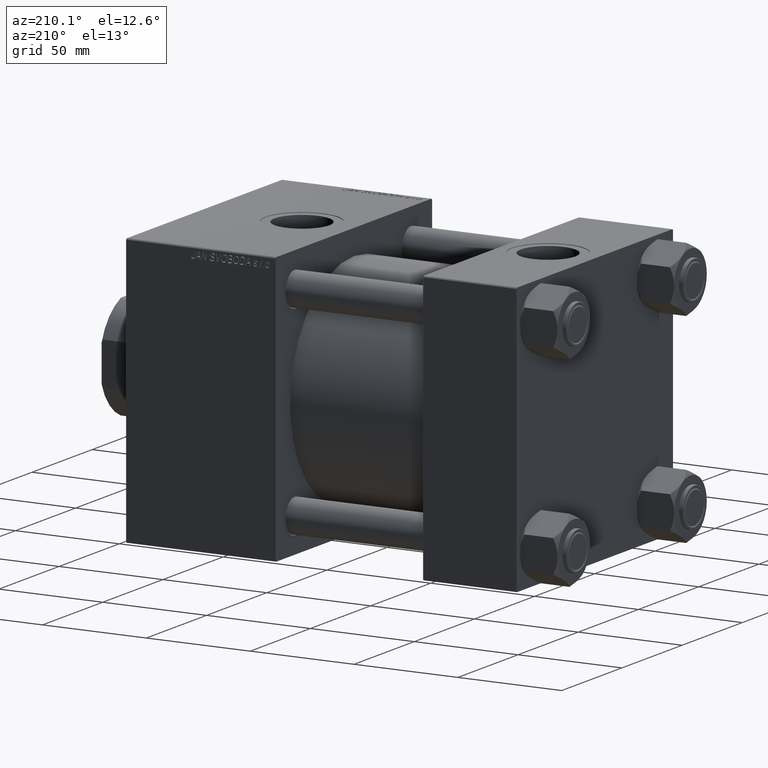
[diagram: clean part render]
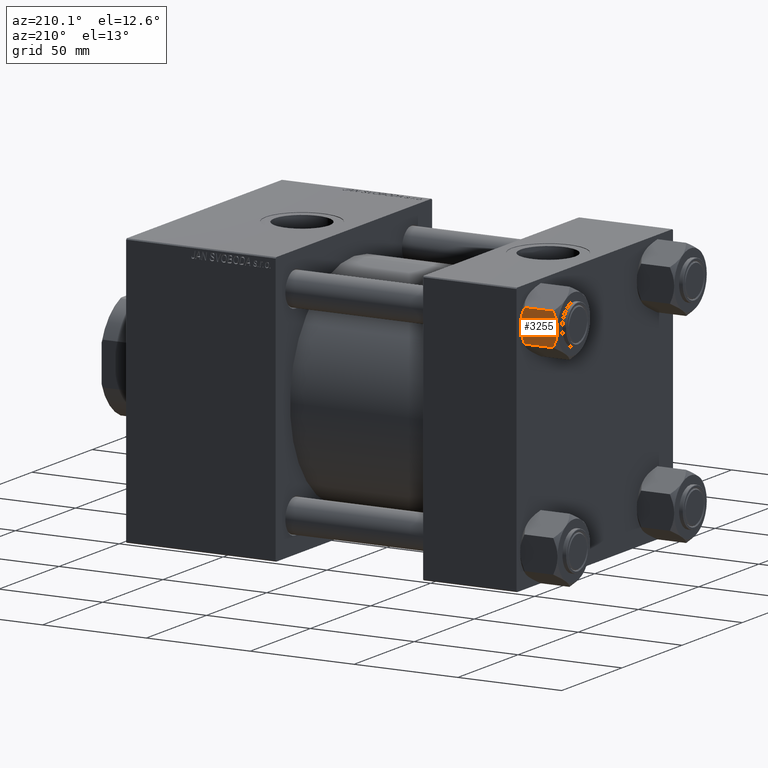
[diagram: same view with one face highlighted and labeled with its STEP entity id]
A machine part, auxiliary view. The second image highlights one B-rep face of the part: STEP entity #3255.
In plain terms, the highlighted planar face has unit normal (0, -1, 0).
Its self-contained STEP definition (entity closure, byte-faithful):
#275 = CARTESIAN_POINT ( 'NONE',  ( 0.3330234424833806162, 13.52731680711293905, -17.99999999999998579 ) ) ;
#593 = DIRECTION ( 'NONE',  ( 1.000000000000000000, 1.110578409716265846E-16, 0.000000000000000000 ) ) ;
#1275 = CARTESIAN_POINT ( 'NONE',  ( 0.6693083573771171357, 13.52731680711294082, -17.98750666918890673 ) ) ;
#1527 = LINE ( 'NONE', #28736, #25315 ) ;
#2164 = VERTEX_POINT ( 'NONE', #39122 ) ;
#3255 = ADVANCED_FACE ( 'NONE', ( #4310 ), #34576, .F. ) ;
#3800 = CARTESIAN_POINT ( 'NONE',  ( 7.622943475354644782, 13.52731680711293727, -2.000000000000000000 ) ) ;
#4310 = FACE_OUTER_BOUND ( 'NONE', #17946, .T. ) ;
#4626 = CARTESIAN_POINT ( 'NONE',  ( 1.333889873825127248, 13.52731680711293549, -17.93843358996559090 ) ) ;
#4635 = CARTESIAN_POINT ( 'NONE',  ( 7.622943475354622578, 13.52731680711293727, -16.00000000000000000 ) ) ;
#4938 = VERTEX_POINT ( 'NONE', #29792 ) ;
#5103 = CARTESIAN_POINT ( 'NONE',  ( -7.809999999999996945, 13.52731680711293727, -16.00000000000000000 ) ) ;
#5151 = VERTEX_POINT ( 'NONE', #4635 ) ;
#5479 = CARTESIAN_POINT ( 'NONE',  ( -7.030888348548044675, 13.52731680711294082, -16.29066211644970252 ) ) ;
#5972 = CARTESIAN_POINT ( 'NONE',  ( -6.427364677720452946, 13.52731680711293905, -16.56149306284485334 ) ) ;
#7260 = EDGE_CURVE ( 'NONE', #16471, #18568, #25800, .T. ) ;
#7432 = ORIENTED_EDGE ( 'NONE', *, *, #17527, .F. ) ;
#8677 = ORIENTED_EDGE ( 'NONE', *, *, #38602, .F. ) ;
#8712 = CARTESIAN_POINT ( 'NONE',  ( 5.184073258379385152, 13.52731680711294260, -17.05185620934991064 ) ) ;
#9073 = VERTEX_POINT ( 'NONE', #41779 ) ;
#9275 = CARTESIAN_POINT ( 'NONE',  ( -7.622943475354626131, 13.52731680711293727, -16.00000000000000000 ) ) ;
#9617 = ORIENTED_EDGE ( 'NONE', *, *, #33558, .F. ) ;
#9938 = CARTESIAN_POINT ( 'NONE',  ( -1.502314598737160017E-15, 13.52731680711293727, 0.000000000000000000 ) ) ;
#11773 = ORIENTED_EDGE ( 'NONE', *, *, #50526, .F. ) ;
#12460 = B_SPLINE_CURVE_WITH_KNOTS ( 'NONE', 3,
 ( #9938, #41245, #37387, #43271, #23253, #34803, #30694, #27121, #50202, #23757, #30947, #42768 ),
 .UNSPECIFIED., .F., .F.,
 ( 4, 2, 2, 2, 2, 4 ),
 ( 0.02774433486126545723, 0.02873404020403549572, 0.02972374554680553421, 0.03170315623234561120, 0.03368256691788568125, 0.03566197760342575823 ),
 .UNSPECIFIED. ) ;
#12580 = CARTESIAN_POINT ( 'NONE',  ( 7.622943475354622578, 13.52731680711293727, -16.00000000000000000 ) ) ;
#13304 = LINE ( 'NONE', #5103, #42018 ) ;
#13898 = CARTESIAN_POINT ( 'NONE',  ( 7.810000000000001386, 13.52731680711293905, -18.00000000000000000 ) ) ;
#14277 = EDGE_CURVE ( 'NONE', #44326, #2164, #46296, .T. ) ;
#15368 = DIRECTION ( 'NONE',  ( -1.000000000000000000, -1.110578409716265846E-16, 0.000000000000000000 ) ) ;
#15601 = CARTESIAN_POINT ( 'NONE',  ( 1.335584685993415732, 13.52731680711294260, -9.825582188149885905E-16 ) ) ;
#15638 = EDGE_CURVE ( 'NONE', #4938, #16471, #47811, .T. ) ;
#16471 = VERTEX_POINT ( 'NONE', #9275 ) ;
#17527 = EDGE_CURVE ( 'NONE', #18568, #5151, #40630, .T. ) ;
#17946 = EDGE_LOOP ( 'NONE', ( #22212, #25663, #9617, #11773, #49178, #26894, #8677, #27614, #7432, #39208 ) ) ;
#18034 = CARTESIAN_POINT ( 'NONE',  ( -4.553769687922292420, 13.52731680711293905, -17.26727080048547691 ) ) ;
#18151 = VECTOR ( 'NONE', #593, 1000.000000000000000 ) ;
#18389 = CARTESIAN_POINT ( 'NONE',  ( 7.810000000000000497, 13.52731680711293905, -16.00000000000000000 ) ) ;
#18568 = VERTEX_POINT ( 'NONE', #41851 ) ;
#18840 = AXIS2_PLACEMENT_3D ( 'NONE', #46637, #19957, #35601 ) ;
#19957 = DIRECTION ( 'NONE',  ( 1.110578409716265846E-16, -1.000000000000000000, 0.000000000000000000 ) ) ;
#20529 = CARTESIAN_POINT ( 'NONE',  ( 2.644243758052981175, 13.52731680711294082, -17.75917188019759507 ) ) ;
#20965 = VECTOR ( 'NONE', #15368, 1000.000000000000000 ) ;
#21123 = CARTESIAN_POINT ( 'NONE',  ( -1.335584685993412180, 13.52731680711293549, -17.99999999999998224 ) ) ;
#21949 = VECTOR ( 'NONE', #40263, 1000.000000000000000 ) ;
#22021 = VERTEX_POINT ( 'NONE', #18389 ) ;
#22212 = ORIENTED_EDGE ( 'NONE', *, *, #15638, .F. ) ;
#22222 = VERTEX_POINT ( 'NONE', #30944 ) ;
#23145 = EDGE_CURVE ( 'NONE', #5151, #22021, #13304, .T. ) ;
#23253 = CARTESIAN_POINT ( 'NONE',  ( -1.663410456966174955, 13.52731680711293905, -0.09804949135699160545 ) ) ;
#23757 = CARTESIAN_POINT ( 'NONE',  ( -6.422751913021828685, 13.52731680711293905, -1.436509110925899391 ) ) ;
#24367 = CARTESIAN_POINT ( 'NONE',  ( 7.030203932307562908, 13.52731680711294260, -16.29099812210860065 ) ) ;
#25315 = VECTOR ( 'NONE', #48499, 1000.000000000000000 ) ;
#25663 = ORIENTED_EDGE ( 'NONE', *, *, #39855, .T. ) ;
#25800 = B_SPLINE_CURVE_WITH_KNOTS ( 'NONE', 3,
 ( #40638, #5479, #5972, #33172, #18034, #33669, #21123, #48332 ),
 .UNSPECIFIED., .F., .F.,
 ( 4, 2, 2, 4 ),
 ( 0.01980594295952730829, 0.02179054093496184119, 0.02377513891039637409, 0.02774433486126544682 ),
 .UNSPECIFIED. ) ;
#25987 = VECTOR ( 'NONE', #33649, 1000.000000000000000 ) ;
#26894 = ORIENTED_EDGE ( 'NONE', *, *, #43085, .F. ) ;
#27121 = CARTESIAN_POINT ( 'NONE',  ( -4.557734399832416905, 13.52731680711293905, -0.7341470174115153347 ) ) ;
#27415 = CARTESIAN_POINT ( 'NONE',  ( 7.030888348548061551, 13.52731680711294082, -1.709337883550299697 ) ) ;
#27614 = ORIENTED_EDGE ( 'NONE', *, *, #23145, .F. ) ;
#27659 = CARTESIAN_POINT ( 'NONE',  ( -1.502314598737160017E-15, 13.52731680711293727, 0.000000000000000000 ) ) ;
#27834 = CARTESIAN_POINT ( 'NONE',  ( 7.622943475354644782, 13.52731680711293727, -2.000000000000000000 ) ) ;
#28386 = VERTEX_POINT ( 'NONE', #34131 ) ;
#28736 = CARTESIAN_POINT ( 'NONE',  ( -7.809999999999996945, 13.52731680711293727, -1.999999999999998224 ) ) ;
#28805 = CARTESIAN_POINT ( 'NONE',  ( -7.809999999999996945, 13.52731680711293727, -16.00000000000000000 ) ) ;
#28952 = DIRECTION ( 'NONE',  ( 1.000000000000000000, 1.110578409716265846E-16, 0.000000000000000000 ) ) ;
#29303 = LINE ( 'NONE', #13898, #25987 ) ;
#29792 = CARTESIAN_POINT ( 'NONE',  ( -7.809999999999996945, 13.52731680711293727, -16.00000000000000000 ) ) ;
#30694 = CARTESIAN_POINT ( 'NONE',  ( -3.287826776903158166, 13.52731680711293905, -0.3804584453753378503 ) ) ;
#30944 = CARTESIAN_POINT ( 'NONE',  ( -7.809999999999996945, 13.52731680711293727, -1.999999999999998224 ) ) ;
#30947 = CARTESIAN_POINT ( 'NONE',  ( -7.030203932307583337, 13.52731680711293372, -1.709001877891392907 ) ) ;
#31248 = CARTESIAN_POINT ( 'NONE',  ( 4.553769687922307519, 13.52731680711294260, -0.7327291995145179815 ) ) ;
#31317 = CARTESIAN_POINT ( 'NONE',  ( 3.287826776903140402, 13.52731680711293905, -17.61954155462465721 ) ) ;
#33172 = CARTESIAN_POINT ( 'NONE',  ( -5.189513245496315541, 13.52731680711293727, -17.04988915682673678 ) ) ;
#33558 = EDGE_CURVE ( 'NONE', #9073, #22222, #34869, .T. ) ;
#33649 = DIRECTION ( 'NONE',  ( -0.000000000000000000, -0.000000000000000000, 1.000000000000000000 ) ) ;
#33669 = CARTESIAN_POINT ( 'NONE',  ( -2.638177715023100056, 13.52731680711293905, -17.79984593233010770 ) ) ;
#34131 = CARTESIAN_POINT ( 'NONE',  ( 7.810000000000000497, 13.52731680711293905, -1.999999999999998224 ) ) ;
#34576 = PLANE ( 'NONE',  #18840 ) ;
#34803 = CARTESIAN_POINT ( 'NONE',  ( -2.644243758052991389, 13.52731680711293905, -0.2408281198023998759 ) ) ;
#34869 = LINE ( 'NONE', #50523, #20965 ) ;
#35601 = DIRECTION ( 'NONE',  ( 1.000000000000000000, 1.110578409716265846E-16, 0.000000000000000000 ) ) ;
#36163 = CARTESIAN_POINT ( 'NONE',  ( -7.809999999999996945, 13.52731680711293727, -18.00000000000000000 ) ) ;
#37387 = CARTESIAN_POINT ( 'NONE',  ( -0.6693083573771214656, 13.52731680711293727, -0.01249333081108175945 ) ) ;
#37730 = CARTESIAN_POINT ( 'NONE',  ( 5.189513245496327976, 13.52731680711294082, -0.9501108431732597781 ) ) ;
#38602 = EDGE_CURVE ( 'NONE', #22021, #28386, #29303, .T. ) ;
#38943 = CARTESIAN_POINT ( 'NONE',  ( 6.427364677720470709, 13.52731680711294082, -1.438506937155140442 ) ) ;
#39122 = CARTESIAN_POINT ( 'NONE',  ( -1.502314598737160017E-15, 13.52731680711293727, 0.000000000000000000 ) ) ;
#39208 = ORIENTED_EDGE ( 'NONE', *, *, #7260, .F. ) ;
#39260 = CARTESIAN_POINT ( 'NONE',  ( 1.663410456966167184, 13.52731680711293905, -17.90195050864299375 ) ) ;
#39773 = CARTESIAN_POINT ( 'NONE',  ( 4.557734399832398253, 13.52731680711293905, -17.26585298258848056 ) ) ;
#39855 = EDGE_CURVE ( 'NONE', #4938, #22222, #43340, .T. ) ;
#40263 = DIRECTION ( 'NONE',  ( -0.000000000000000000, -0.000000000000000000, 1.000000000000000000 ) ) ;
#40283 = CARTESIAN_POINT ( 'NONE',  ( -1.502314598737160017E-15, 13.52731680711293727, -18.00000000000000000 ) ) ;
#40630 = B_SPLINE_CURVE_WITH_KNOTS ( 'NONE', 3,
 ( #40283, #275, #1275, #4626, #39260, #20529, #31317, #39773, #8712, #46977, #24367, #12580 ),
 .UNSPECIFIED., .F., .F.,
 ( 4, 2, 2, 2, 2, 4 ),
 ( 0.02774433486126544682, 0.02873404020403548184, 0.02972374554680551340, 0.03170315623234558344, 0.03368256691788565349, 0.03566197760342572354 ),
 .UNSPECIFIED. ) ;
#40638 = CARTESIAN_POINT ( 'NONE',  ( -7.622943475354626131, 13.52731680711293727, -16.00000000000000000 ) ) ;
#41245 = CARTESIAN_POINT ( 'NONE',  ( -0.3330234424833839468, 13.52731680711293727, -8.499975625696903903E-16 ) ) ;
#41779 = CARTESIAN_POINT ( 'NONE',  ( -7.622943475354648335, 13.52731680711293727, -2.000000000000000000 ) ) ;
#41851 = CARTESIAN_POINT ( 'NONE',  ( -1.502314598737160017E-15, 13.52731680711293727, -18.00000000000000000 ) ) ;
#42018 = VECTOR ( 'NONE', #28952, 1000.000000000000000 ) ;
#42768 = CARTESIAN_POINT ( 'NONE',  ( -7.622943475354648335, 13.52731680711293727, -2.000000000000000000 ) ) ;
#43085 = EDGE_CURVE ( 'NONE', #28386, #44326, #1527, .T. ) ;
#43271 = CARTESIAN_POINT ( 'NONE',  ( -1.333889873825134353, 13.52731680711293905, -0.06156641003439419085 ) ) ;
#43340 = LINE ( 'NONE', #36163, #21949 ) ;
#44326 = VERTEX_POINT ( 'NONE', #27834 ) ;
#46296 = B_SPLINE_CURVE_WITH_KNOTS ( 'NONE', 3,
 ( #3800, #27415, #38943, #37730, #31248, #46915, #15601, #27659 ),
 .UNSPECIFIED., .F., .F.,
 ( 4, 2, 2, 4 ),
 ( 0.01980594295952729095, 0.02179054093496183425, 0.02377513891039637409, 0.02774433486126545723 ),
 .UNSPECIFIED. ) ;
#46637 = CARTESIAN_POINT ( 'NONE',  ( -7.809999999999996945, 13.52731680711293727, -18.00000000000000000 ) ) ;
#46915 = CARTESIAN_POINT ( 'NONE',  ( 2.638177715023106717, 13.52731680711294260, -0.2001540676698861931 ) ) ;
#46977 = CARTESIAN_POINT ( 'NONE',  ( 6.422751913021802039, 13.52731680711294260, -16.56349088907410660 ) ) ;
#47811 = LINE ( 'NONE', #28805, #18151 ) ;
#48332 = CARTESIAN_POINT ( 'NONE',  ( -1.502314598737160017E-15, 13.52731680711293727, -18.00000000000000000 ) ) ;
#48499 = DIRECTION ( 'NONE',  ( -1.000000000000000000, -1.110578409716265846E-16, 0.000000000000000000 ) ) ;
#49178 = ORIENTED_EDGE ( 'NONE', *, *, #14277, .F. ) ;
#50202 = CARTESIAN_POINT ( 'NONE',  ( -5.184073258379408244, 13.52731680711293727, -0.9481437906500859158 ) ) ;
#50523 = CARTESIAN_POINT ( 'NONE',  ( -7.809999999999996945, 13.52731680711293727, -1.999999999999998224 ) ) ;
#50526 = EDGE_CURVE ( 'NONE', #2164, #9073, #12460, .T. ) ;